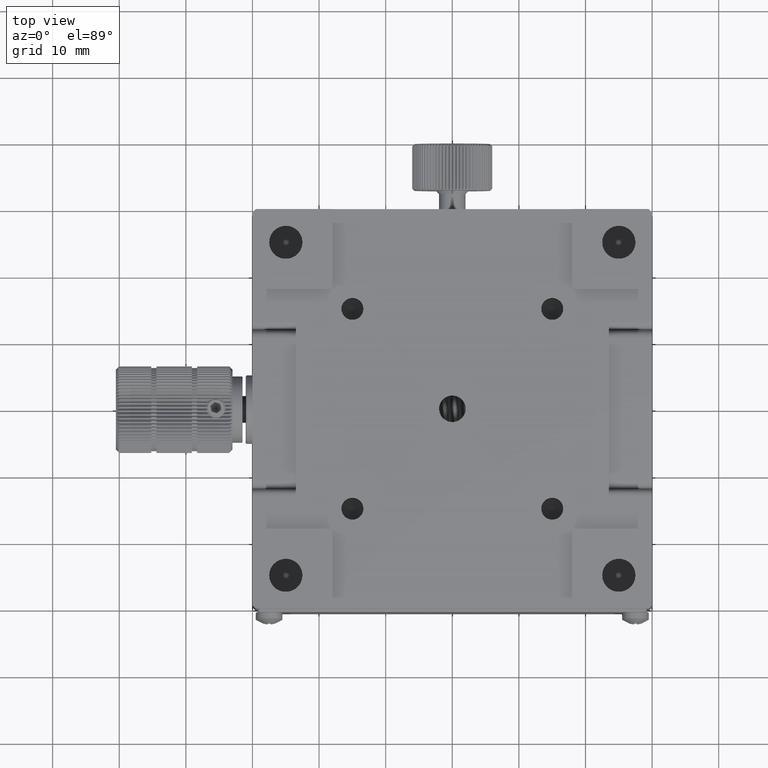
[diagram: clean part render]
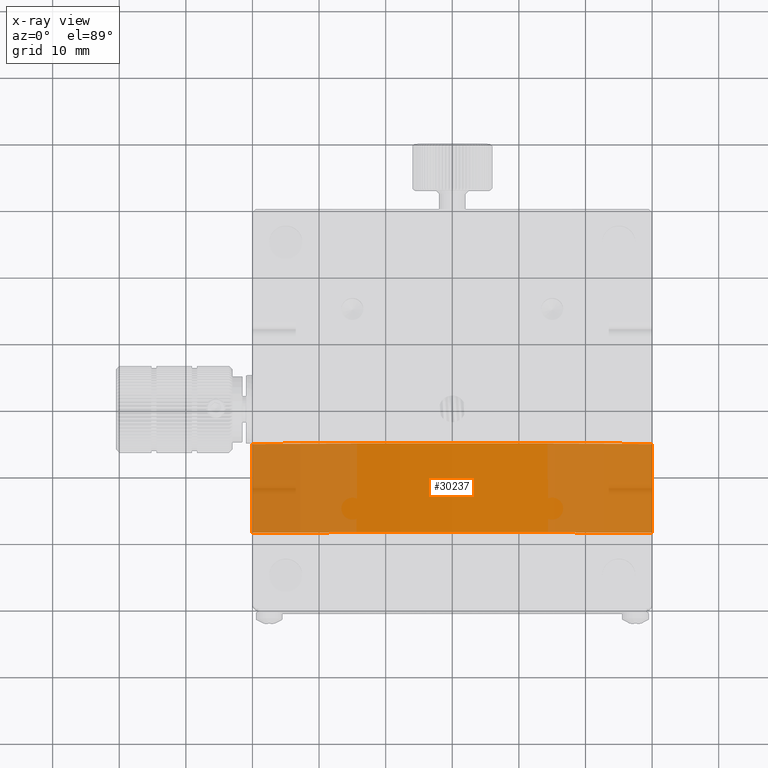
[diagram: x-ray — body ghosted, one internal face saturated and labeled with its STEP entity id]
A machine part, top view, then the same camera in x-ray: the body is ghosted and one INTERNAL B-rep face — a face not visible from any outside direction — is saturated and labeled: STEP entity #30237.
In plain terms, the highlighted cylindrical surface (partial cylindrical patch) has radius 69.5 mm, axis along (-0, -1, -0).
Its self-contained STEP definition (entity closure, byte-faithful):
#10234 = LINE ( 'NONE', #26855, #21982 ) ;
#11595 = ORIENTED_EDGE ( 'NONE', *, *, #57700, .F. ) ;
#12217 = AXIS2_PLACEMENT_3D ( 'NONE', #69605, #41759, #70724 ) ;
#18526 = DIRECTION ( 'NONE',  ( 0.000000000000000000, 0.000000000000000000, -1.000000000000000000 ) ) ;
#21982 = VECTOR ( 'NONE', #55133, 1000.000000000000000 ) ;
#23036 = ORIENTED_EDGE ( 'NONE', *, *, #52068, .F. ) ;
#24172 = DIRECTION ( 'NONE',  ( -0.000000000000000000, -1.000000000000000000, -0.000000000000000000 ) ) ;
#25937 = CIRCLE ( 'NONE', #72865, 69.49999999999997158 ) ;
#26855 = CARTESIAN_POINT ( 'NONE',  ( -30.00000000000000000, -30.00000000000000000, 62.69170599050561066 ) ) ;
#29925 = LINE ( 'NONE', #46164, #43066 ) ;
#30237 = ADVANCED_FACE ( 'NONE', ( #37224 ), #30426, .F. ) ;
#30426 = CYLINDRICAL_SURFACE ( 'NONE', #56627, 69.49999999999997158 ) ;
#32623 = CARTESIAN_POINT ( 'NONE',  ( 30.00000000000000711, -5.000000000000000000, 62.69170599050561066 ) ) ;
#33149 = EDGE_CURVE ( 'NONE', #69890, #49380, #10234, .T. ) ;
#33996 = VERTEX_POINT ( 'NONE', #51836 ) ;
#35103 = CIRCLE ( 'NONE', #12217, 69.49999999999997158 ) ;
#35210 = DIRECTION ( 'NONE',  ( -0.000000000000000000, -1.000000000000000000, 0.000000000000000000 ) ) ;
#37224 = FACE_OUTER_BOUND ( 'NONE', #74609, .T. ) ;
#41759 = DIRECTION ( 'NONE',  ( 0.000000000000000000, 1.000000000000000000, 0.000000000000000000 ) ) ;
#42891 = DIRECTION ( 'NONE',  ( -0.000000000000000000, -1.000000000000000000, -0.000000000000000000 ) ) ;
#43066 = VECTOR ( 'NONE', #35210, 1000.000000000000000 ) ;
#46164 = CARTESIAN_POINT ( 'NONE',  ( 30.00000000000000000, -30.00000000000000000, 62.69170599050561066 ) ) ;
#46341 = CARTESIAN_POINT ( 'NONE',  ( -30.00000000000000000, -5.000000000000000888, 62.69170599050561066 ) ) ;
#49380 = VERTEX_POINT ( 'NONE', #53888 ) ;
#51836 = CARTESIAN_POINT ( 'NONE',  ( 29.99999999999999289, -18.32901631902914019, 62.69170599050561066 ) ) ;
#52068 = EDGE_CURVE ( 'NONE', #49380, #33996, #35103, .T. ) ;
#53888 = CARTESIAN_POINT ( 'NONE',  ( -30.00000000000020606, -18.32901631902929296, 62.69170599050552539 ) ) ;
#55133 = DIRECTION ( 'NONE',  ( -0.000000000000000000, -1.000000000000000000, -0.000000000000000000 ) ) ;
#55958 = ORIENTED_EDGE ( 'NONE', *, *, #33149, .F. ) ;
#56627 = AXIS2_PLACEMENT_3D ( 'NONE', #59058, #42891, #59831 ) ;
#57700 = EDGE_CURVE ( 'NONE', #65615, #69890, #25937, .T. ) ;
#59058 = CARTESIAN_POINT ( 'NONE',  ( 0.000000000000000000, 0.000000000000000000, 0.000000000000000000 ) ) ;
#59831 = DIRECTION ( 'NONE',  ( 0.000000000000000000, 0.000000000000000000, -1.000000000000000000 ) ) ;
#65615 = VERTEX_POINT ( 'NONE', #32623 ) ;
#69605 = CARTESIAN_POINT ( 'NONE',  ( 0.000000000000000000, -18.32901631902914019, 0.000000000000000000 ) ) ;
#69890 = VERTEX_POINT ( 'NONE', #46341 ) ;
#70117 = CARTESIAN_POINT ( 'NONE',  ( 0.000000000000000000, -5.000000000000000000, 0.000000000000000000 ) ) ;
#70720 = ORIENTED_EDGE ( 'NONE', *, *, #70877, .T. ) ;
#70724 = DIRECTION ( 'NONE',  ( 1.776356839400250465E-15, 0.000000000000000000, -1.000000000000000000 ) ) ;
#70877 = EDGE_CURVE ( 'NONE', #65615, #33996, #29925, .T. ) ;
#72865 = AXIS2_PLACEMENT_3D ( 'NONE', #70117, #24172, #18526 ) ;
#74609 = EDGE_LOOP ( 'NONE', ( #55958, #11595, #70720, #23036 ) ) ;